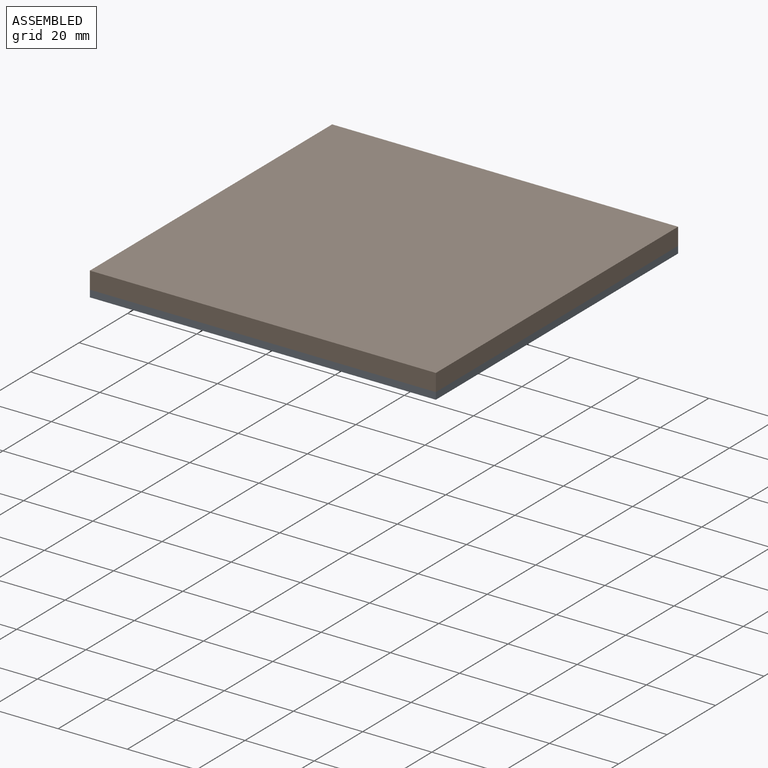
[diagram: assembled view]
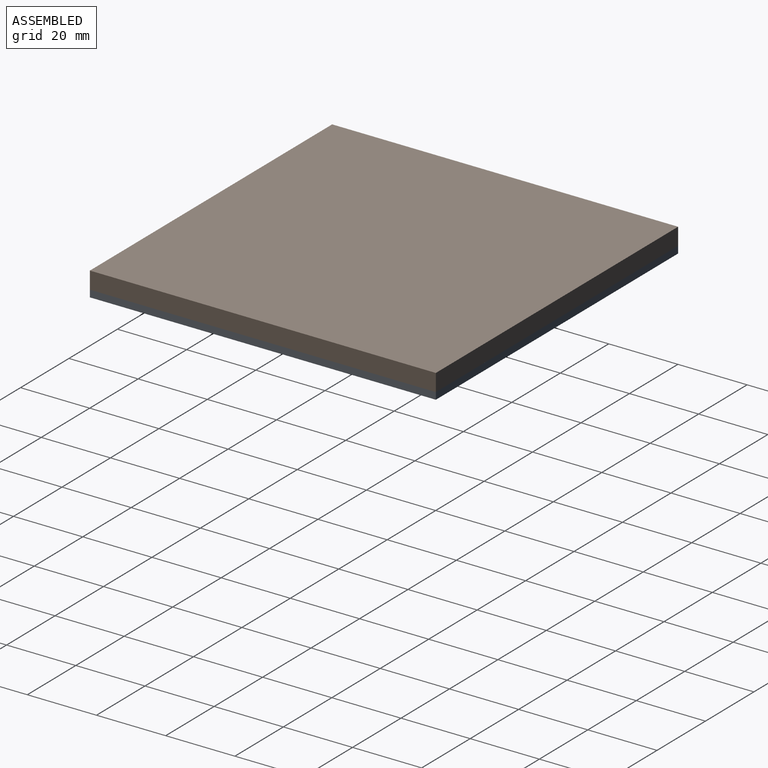
[diagram: assembled view, second angle]
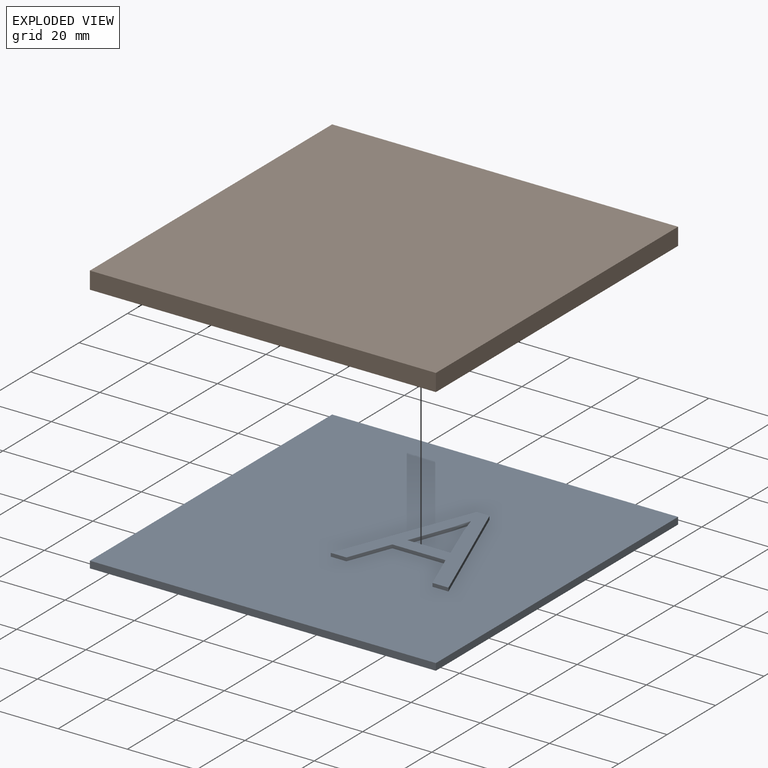
[diagram: exploded view]
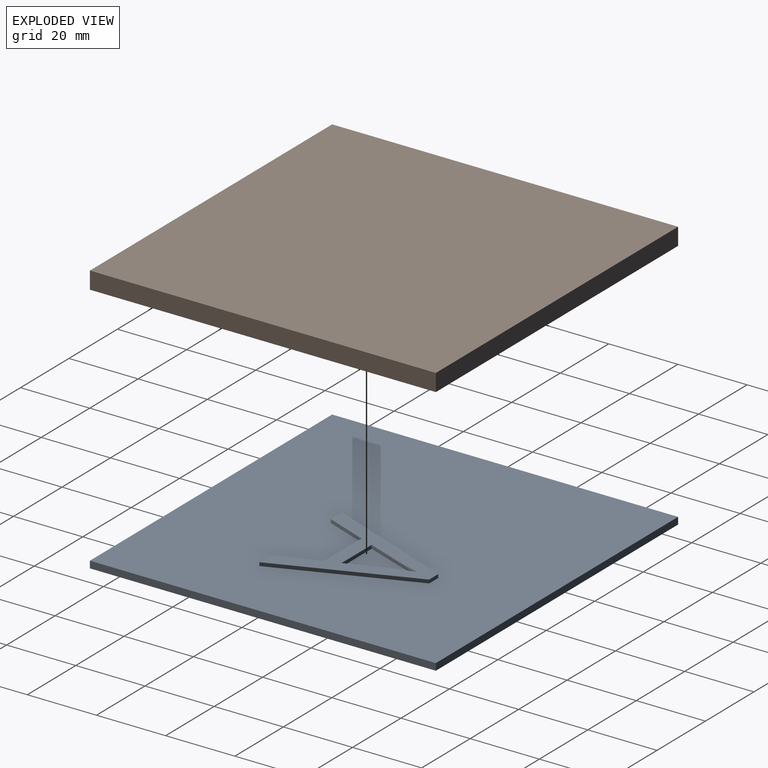
[diagram: exploded view, second angle]
ASSEMBLY  parts=2 mates=3
PART A: 21 faces, bbox 100x100x3 mm
  f0: plane 100x100mm, normal (0,0,1), area 9518.3mm2, adj f1,f2,f3,f4,f10,f11,f12,f13
  f1: plane 100x2mm, normal (1,0,0), area 200mm2, adj f0,f2,f4,f5
  f2: plane 100x2mm, normal (0,1,0), area 200mm2, adj f0,f1,f3,f5
  f3: plane 100x2mm, normal (-1,0,0), area 200mm2, adj f0,f2,f4,f5
  f4: plane 100x2mm, normal (0,-1,0), area 200mm2, adj f0,f1,f3,f5
  f5: plane 100x100mm, normal (0,0,-1), area 10000mm2, adj f1,f2,f3,f4
  f6: plane 11.89x4.47mm, normal (-0.94,-0.35,0), area 12.7mm2, adj f7,f18,f19,f20
  f7: plane 12.41x1mm, normal (0,1,0), area 12.4mm2, adj f6,f8,f19,f20
  f8: plane 11.89x4.51mm, normal (0.94,-0.35,0), area 12.7mm2, adj f7,f9,f19,f20
  f9: extruded ~5.53x1.65mm, area 5.8mm2, adj f8,f18,f19,f20
  f10: plane 12.2x4.78mm, normal (-0.93,-0.36,0), area 13.1mm2, adj f0,f11,f17,f19
  f11: plane 4.62x1mm, normal (0,-1,0), area 4.6mm2, adj f0,f10,f12,f19
  f12: plane 38.52x15.09mm, normal (0.93,0.36,0), area 41.4mm2, adj f0,f11,f13,f19
  f13: plane 3.75x1mm, normal (0,1,0), area 3.8mm2, adj f0,f12,f14,f19
  f14: plane 38.52x15.16mm, normal (-0.93,0.37,0), area 41.4mm2, adj f0,f13,f15,f19
  f15: plane 4.52x1mm, normal (0,-1,0), area 4.5mm2, adj f0,f14,f16,f19
  f16: plane 12.2x4.72mm, normal (0.93,-0.36,0), area 13.1mm2, adj f0,f15,f17,f19
  f17: plane 15.37x1mm, normal (0,-1,0), area 15.4mm2, adj f0,f10,f16,f19
  f18: extruded ~5.53x1.78mm, area 5.8mm2, adj f6,f9,f19,f20
  f19: plane 38.52x34mm, normal (0,0,1), area 378.6mm2, adj f6,f7,f8,f9,f10,f11,f12,f13
  f20: plane 17.42x12.41mm, normal (0,0,1), area 103.1mm2, adj f6,f7,f8,f9,f18
PART B: 6 faces, bbox 100x100x5 mm
  f0: plane 100x5mm, normal (1,0,0), area 500mm2, adj f1,f3,f4,f5
  f1: plane 100x5mm, normal (0,1,0), area 500mm2, adj f0,f2,f4,f5
  f2: plane 100x5mm, normal (-1,0,0), area 500mm2, adj f1,f3,f4,f5
  f3: plane 100x5mm, normal (0,-1,0), area 500mm2, adj f0,f2,f4,f5
  f4: plane 100x100mm, normal (0,0,-1), area 10000mm2, adj f0,f1,f2,f3
  f5: plane 100x100mm, normal (0,0,1), area 10000mm2, adj f0,f1,f2,f3
PLACE A t=(-21.09,7.42,51.88)mm
PLACE B t=(-21.09,7.42,56.88)mm
MATE planar A.f0 <-> B.f4  axis (0,0,1) through (-13.38,-15.99,51.88)mm
MATE planar A.f1 <-> B.f0  axis (1,0,0) through (37.25,-15.84,50.88)mm
MATE planar A.f4 <-> B.f3  axis (0,-1,0) through (-12.75,-65.84,50.88)mm
